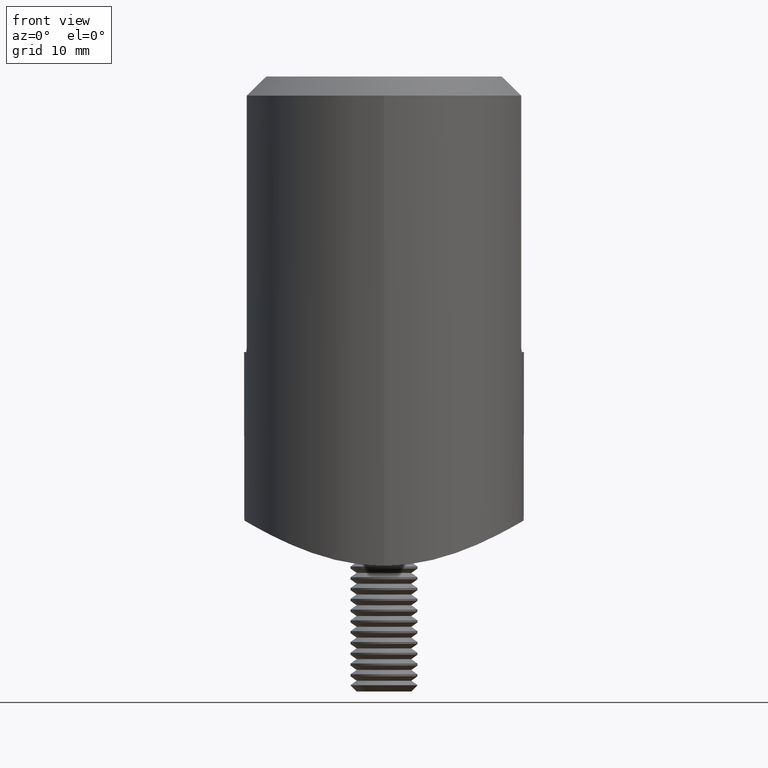
[diagram: clean part render]
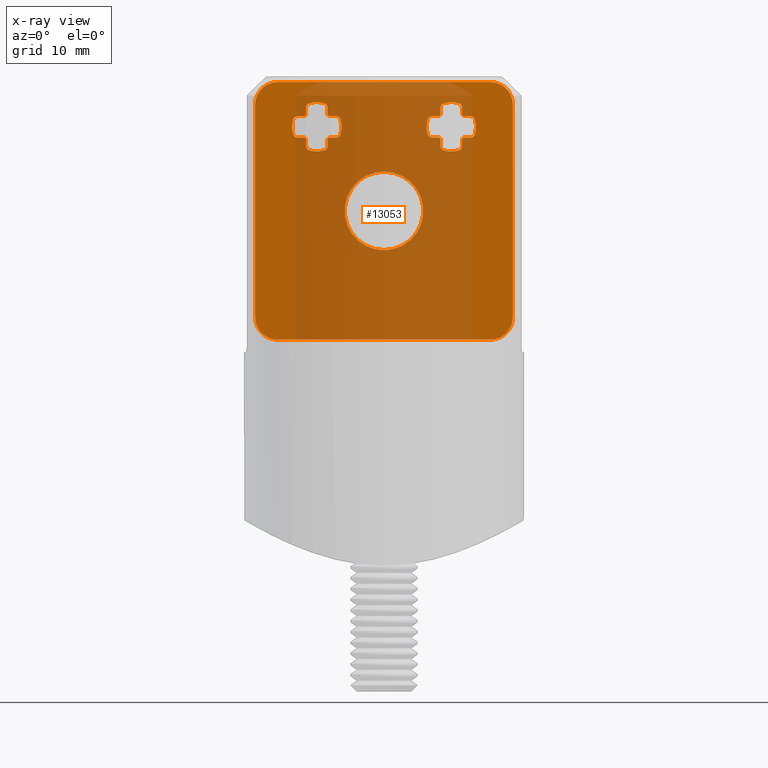
[diagram: x-ray — body ghosted, one internal face saturated and labeled with its STEP entity id]
A machine part, front view, then the same camera in x-ray: the body is ghosted and one INTERNAL B-rep face — a face not visible from any outside direction — is saturated and labeled: STEP entity #13053.
In plain terms, the highlighted planar face has unit normal (0, 1, 0).
Its self-contained STEP definition (entity closure, byte-faithful):
#18 = CARTESIAN_POINT ( 'NONE',  ( 5.050000000000002487, 1.000000000000000000, 9.213913650100257868 ) ) ;
#153 = DIRECTION ( 'NONE',  ( -0.000000000000000000, 1.000000000000000000, 0.000000000000000000 ) ) ;
#178 = VERTEX_POINT ( 'NONE', #21752 ) ;
#295 = CARTESIAN_POINT ( 'NONE',  ( 6.000000000000002665, 1.000000000000000000, 7.499999999999996447 ) ) ;
#430 = CARTESIAN_POINT ( 'NONE',  ( -7.000000000000002665, 1.000000000000000000, 6.549999999999996270 ) ) ;
#473 = EDGE_CURVE ( 'NONE', #21615, #19781, #9952, .T. ) ;
#505 = EDGE_CURVE ( 'NONE', #16956, #4837, #7337, .T. ) ;
#550 = DIRECTION ( 'NONE',  ( 0.000000000000000000, 0.000000000000000000, -1.000000000000000000 ) ) ;
#681 = CARTESIAN_POINT ( 'NONE',  ( 6.000000000000002665, 1.000000000000000000, 7.499999999999996447 ) ) ;
#733 = CARTESIAN_POINT ( 'NONE',  ( -5.327777777777780166, 1.000000000000000000, 9.594783350122540355 ) ) ;
#753 = CIRCLE ( 'NONE', #11497, 0.3999999999999993006 ) ;
#766 = EDGE_CURVE ( 'NONE', #21406, #3413, #15003, .T. ) ;
#813 = VERTEX_POINT ( 'NONE', #13822 ) ;
#901 = DIRECTION ( 'NONE',  ( 0.000000000000000000, 0.000000000000000000, -1.000000000000000000 ) ) ;
#1034 = AXIS2_PLACEMENT_3D ( 'NONE', #14915, #14985, #18159 ) ;
#1074 = VECTOR ( 'NONE', #10625, 1000.000000000000000 ) ;
#1128 = CIRCLE ( 'NONE', #18312, 1.450000000000001732 ) ;
#1146 = DIRECTION ( 'NONE',  ( 0.000000000000000000, 0.000000000000000000, -1.000000000000000000 ) ) ;
#1154 = FACE_BOUND ( 'NONE', #16466, .T. ) ;
#1166 = CARTESIAN_POINT ( 'NONE',  ( -6.672222222222226051, 1.000000000000000000, 9.594783350122536802 ) ) ;
#1229 = CARTESIAN_POINT ( 'NONE',  ( 4.286086349899742132, 1.000000000000000000, 6.549999999999997158 ) ) ;
#1269 = DIRECTION ( 'NONE',  ( 0.000000000000000000, 0.000000000000000000, -1.000000000000000000 ) ) ;
#1325 = CIRCLE ( 'NONE', #12091, 0.3999999999999993006 ) ;
#1358 = DIRECTION ( 'NONE',  ( 0.000000000000000000, 0.000000000000000000, -1.000000000000000000 ) ) ;
#1361 = VECTOR ( 'NONE', #8735, 1000.000000000000000 ) ;
#1372 = EDGE_CURVE ( 'NONE', #4837, #10911, #14984, .T. ) ;
#1527 = VERTEX_POINT ( 'NONE', #15574 ) ;
#1549 = CARTESIAN_POINT ( 'NONE',  ( 5.327777777777780166, 1.000000000000000000, 5.405216649877454316 ) ) ;
#1558 = CARTESIAN_POINT ( 'NONE',  ( -9.500000000000005329, 1.000000000000000000, -11.49999999999999112 ) ) ;
#1596 = EDGE_CURVE ( 'NONE', #5837, #14023, #12094, .T. ) ;
#1623 = EDGE_CURVE ( 'NONE', #178, #14460, #15473, .T. ) ;
#1639 = CARTESIAN_POINT ( 'NONE',  ( -7.713913650100259645, 1.000000000000000000, 8.049999999999997158 ) ) ;
#1746 = EDGE_CURVE ( 'NONE', #9316, #21835, #12612, .T. ) ;
#1779 = AXIS2_PLACEMENT_3D ( 'NONE', #14694, #4614, #19572 ) ;
#1801 = CARTESIAN_POINT ( 'NONE',  ( -6.550000000000002487, 1.000000000000000000, 9.213913650100257868 ) ) ;
#1903 = CARTESIAN_POINT ( 'NONE',  ( 6.550000000000003375, 1.000000000000000000, 5.786086349899735026 ) ) ;
#1948 = DIRECTION ( 'NONE',  ( 0.000000000000000000, 0.000000000000000000, -1.000000000000000000 ) ) ;
#1968 = CARTESIAN_POINT ( 'NONE',  ( -4.286086349899735914, 1.000000000000000000, 8.449999999999997513 ) ) ;
#1977 = VERTEX_POINT ( 'NONE', #3638 ) ;
#1980 = CARTESIAN_POINT ( 'NONE',  ( 4.904554884986475294, 1.000000000000000000, 8.449999999999997513 ) ) ;
#2115 = CARTESIAN_POINT ( 'NONE',  ( 4.286086349899742132, 1.000000000000000000, 6.949999999999995737 ) ) ;
#2189 = DIRECTION ( 'NONE',  ( -0.000000000000000000, 1.000000000000000000, 0.000000000000000000 ) ) ;
#2209 = ORIENTED_EDGE ( 'NONE', *, *, #20922, .T. ) ;
#2254 = VERTEX_POINT ( 'NONE', #1229 ) ;
#2357 = VERTEX_POINT ( 'NONE', #8480 ) ;
#2376 = LINE ( 'NONE', #19827, #5823 ) ;
#2404 = CARTESIAN_POINT ( 'NONE',  ( -7.713913650100257868, 1.000000000000000000, 6.949999999999995737 ) ) ;
#2443 = CARTESIAN_POINT ( 'NONE',  ( -6.950000000000002842, 1.000000000000000000, 8.499999999999994671 ) ) ;
#2479 = DIRECTION ( 'NONE',  ( 0.000000000000000000, 0.000000000000000000, -1.000000000000000000 ) ) ;
#2496 = FACE_BOUND ( 'NONE', #10877, .T. ) ;
#2520 = CIRCLE ( 'NONE', #15241, 1.450000000000001732 ) ;
#2560 = ORIENTED_EDGE ( 'NONE', *, *, #21562, .T. ) ;
#2563 = DIRECTION ( 'NONE',  ( 0.000000000000000000, 0.000000000000000000, -1.000000000000000000 ) ) ;
#2598 = VERTEX_POINT ( 'NONE', #15751 ) ;
#2641 = CARTESIAN_POINT ( 'NONE',  ( -6.949999999998421885, 1.000000000000000000, 8.595445115011701276 ) ) ;
#2722 = EDGE_CURVE ( 'NONE', #2357, #16956, #7816, .T. ) ;
#2727 = AXIS2_PLACEMENT_3D ( 'NONE', #1639, #11938, #5064 ) ;
#2814 = AXIS2_PLACEMENT_3D ( 'NONE', #1801, #20339, #15450 ) ;
#2851 = VECTOR ( 'NONE', #21139, 1000.000000000000000 ) ;
#2942 = DIRECTION ( 'NONE',  ( -0.000000000000000000, 1.000000000000000000, 0.000000000000000000 ) ) ;
#3223 = DIRECTION ( 'NONE',  ( 0.000000000000000000, 0.000000000000000000, -1.000000000000000000 ) ) ;
#3294 = CARTESIAN_POINT ( 'NONE',  ( -6.000000000000002665, 1.000000000000000000, 7.499999999999996447 ) ) ;
#3299 = EDGE_CURVE ( 'NONE', #21615, #1977, #9388, .T. ) ;
#3350 = ORIENTED_EDGE ( 'NONE', *, *, #20993, .T. ) ;
#3369 = DIRECTION ( 'NONE',  ( 0.000000000000000000, -1.000000000000000000, -0.000000000000000000 ) ) ;
#3400 = CARTESIAN_POINT ( 'NONE',  ( -4.102413672324902132E-15, 1.000000000000000000, 6.549999999999991829 ) ) ;
#3413 = VERTEX_POINT ( 'NONE', #8433 ) ;
#3424 = CIRCLE ( 'NONE', #17166, 0.4000000000000001887 ) ;
#3548 = ORIENTED_EDGE ( 'NONE', *, *, #9294, .T. ) ;
#3571 = ORIENTED_EDGE ( 'NONE', *, *, #9721, .T. ) ;
#3596 = EDGE_CURVE ( 'NONE', #3652, #2598, #19637, .T. ) ;
#3603 = CARTESIAN_POINT ( 'NONE',  ( -6.000000000000002665, 1.000000000000000000, 7.499999999999996447 ) ) ;
#3638 = CARTESIAN_POINT ( 'NONE',  ( 3.905216649877461421, 1.000000000000000000, 6.827777777777773061 ) ) ;
#3652 = VERTEX_POINT ( 'NONE', #19237 ) ;
#3763 = CARTESIAN_POINT ( 'NONE',  ( 6.000000000000002665, 1.000000000000000000, 7.499999999999996447 ) ) ;
#3776 = CARTESIAN_POINT ( 'NONE',  ( 6.949999999998421885, 1.000000000000000000, 8.595445115011701276 ) ) ;
#3811 = CARTESIAN_POINT ( 'NONE',  ( -4.904554884988297836, 1.000000000000000000, 8.449999999998414779 ) ) ;
#3909 = LINE ( 'NONE', #15983, #6823 ) ;
#3957 = CARTESIAN_POINT ( 'NONE',  ( -8.094783350122540355, 1.000000000000000000, 8.172222222222217169 ) ) ;
#3976 = EDGE_CURVE ( 'NONE', #14460, #17472, #1128, .T. ) ;
#4013 = VERTEX_POINT ( 'NONE', #13559 ) ;
#4015 = EDGE_CURVE ( 'NONE', #10202, #1527, #14072, .T. ) ;
#4040 = VECTOR ( 'NONE', #11619, 1000.000000000000000 ) ;
#4157 = VECTOR ( 'NONE', #15947, 1000.000000000000000 ) ;
#4223 = VECTOR ( 'NONE', #11378, 1000.000000000000000 ) ;
#4248 = VERTEX_POINT ( 'NONE', #16270 ) ;
#4275 = CIRCLE ( 'NONE', #9375, 0.4000000000000001887 ) ;
#4308 = DIRECTION ( 'NONE',  ( 0.000000000000000000, 0.000000000000000000, 1.000000000000000000 ) ) ;
#4456 = DIRECTION ( 'NONE',  ( -8.673617379884035472E-16, 0.000000000000000000, -1.000000000000000000 ) ) ;
#4614 = DIRECTION ( 'NONE',  ( 0.000000000000000000, -1.000000000000000000, -0.000000000000000000 ) ) ;
#4667 = ORIENTED_EDGE ( 'NONE', *, *, #9860, .T. ) ;
#4780 = DIRECTION ( 'NONE',  ( 0.000000000000000000, 0.000000000000000000, -1.000000000000000000 ) ) ;
#4795 = DIRECTION ( 'NONE',  ( 0.000000000000000000, 0.000000000000000000, -1.000000000000000000 ) ) ;
#4804 = VECTOR ( 'NONE', #13951, 1000.000000000000000 ) ;
#4808 = ORIENTED_EDGE ( 'NONE', *, *, #12523, .T. ) ;
#4837 = VERTEX_POINT ( 'NONE', #6618 ) ;
#4842 = EDGE_CURVE ( 'NONE', #12556, #13252, #6928, .T. ) ;
#4929 = CARTESIAN_POINT ( 'NONE',  ( 6.950000000000008171, 1.000000000000000000, 4.352942751550861476E-15 ) ) ;
#4952 = DIRECTION ( 'NONE',  ( 1.000000000000000000, -0.000000000000000000, 6.263226980648714405E-16 ) ) ;
#4970 = VERTEX_POINT ( 'NONE', #18 ) ;
#5053 = AXIS2_PLACEMENT_3D ( 'NONE', #7452, #14149, #2563 ) ;
#5059 = ORIENTED_EDGE ( 'NONE', *, *, #6430, .T. ) ;
#5064 = DIRECTION ( 'NONE',  ( 0.000000000000000000, 0.000000000000000000, -1.000000000000000000 ) ) ;
#5087 = AXIS2_PLACEMENT_3D ( 'NONE', #3603, #13483, #13551 ) ;
#5118 = CARTESIAN_POINT ( 'NONE',  ( 5.050000000000002487, 1.000000000000000000, 8.499999999999994671 ) ) ;
#5154 = LINE ( 'NONE', #13100, #10443 ) ;
#5179 = DIRECTION ( 'NONE',  ( 0.000000000000000000, 0.000000000000000000, -1.000000000000000000 ) ) ;
#5220 = DIRECTION ( 'NONE',  ( -0.000000000000000000, 1.000000000000000000, 0.000000000000000000 ) ) ;
#5306 = EDGE_CURVE ( 'NONE', #13140, #8265, #8803, .T. ) ;
#5327 = EDGE_CURVE ( 'NONE', #14083, #5406, #14729, .T. ) ;
#5341 = EDGE_LOOP ( 'NONE', ( #18328, #4808, #21906, #15230, #16148, #13798, #17421, #9464, #8846, #7062, #16108, #6307, #20502, #16361, #18207, #9103, #17347, #14204, #10392, #19728, #15300, #8287, #6366, #13904 ) ) ;
#5406 = VERTEX_POINT ( 'NONE', #8155 ) ;
#5443 = AXIS2_PLACEMENT_3D ( 'NONE', #3763, #12053, #5179 ) ;
#5555 = VERTEX_POINT ( 'NONE', #1166 ) ;
#5586 = CIRCLE ( 'NONE', #17206, 2.200000000000000622 ) ;
#5663 = ORIENTED_EDGE ( 'NONE', *, *, #14922, .T. ) ;
#5710 = CARTESIAN_POINT ( 'NONE',  ( 0.000000000000000000, 1.000000000000000000, 8.449999999999997513 ) ) ;
#5737 = CARTESIAN_POINT ( 'NONE',  ( 7.713913650100264086, 1.000000000000000000, 6.949999999999995737 ) ) ;
#5823 = VECTOR ( 'NONE', #21606, 1000.000000000000000 ) ;
#5837 = VERTEX_POINT ( 'NONE', #8647 ) ;
#5857 = ORIENTED_EDGE ( 'NONE', *, *, #13909, .T. ) ;
#6151 = DIRECTION ( 'NONE',  ( 1.000000000000000000, 0.000000000000000000, 7.542275982507857147E-17 ) ) ;
#6161 = DIRECTION ( 'NONE',  ( 0.000000000000000000, 0.000000000000000000, -1.000000000000000000 ) ) ;
#6285 = CARTESIAN_POINT ( 'NONE',  ( -5.050000000000002487, 1.000000000000000000, 6.499999999999998224 ) ) ;
#6307 = ORIENTED_EDGE ( 'NONE', *, *, #19238, .T. ) ;
#6317 = CARTESIAN_POINT ( 'NONE',  ( -7.095445115011707493, 1.000000000000000000, 8.449999999998414779 ) ) ;
#6345 = CIRCLE ( 'NONE', #6485, 0.4000000000000001887 ) ;
#6366 = ORIENTED_EDGE ( 'NONE', *, *, #18689, .F. ) ;
#6406 = VERTEX_POINT ( 'NONE', #9976 ) ;
#6430 = EDGE_CURVE ( 'NONE', #6406, #15793, #9496, .T. ) ;
#6485 = AXIS2_PLACEMENT_3D ( 'NONE', #7006, #9008, #550 ) ;
#6506 = DIRECTION ( 'NONE',  ( -0.000000000000000000, 1.000000000000000000, 0.000000000000000000 ) ) ;
#6540 = DIRECTION ( 'NONE',  ( -1.000000000000000000, 0.000000000000000000, 0.000000000000000000 ) ) ;
#6566 = CIRCLE ( 'NONE', #8895, 3.499999999999999556 ) ;
#6586 = EDGE_CURVE ( 'NONE', #7870, #7870, #6566, .T. ) ;
#6618 = CARTESIAN_POINT ( 'NONE',  ( 11.49999999999999645, 1.000000000000000000, -9.500000000000000000 ) ) ;
#6640 = VERTEX_POINT ( 'NONE', #17867 ) ;
#6723 = VERTEX_POINT ( 'NONE', #19573 ) ;
#6730 = VERTEX_POINT ( 'NONE', #9353 ) ;
#6757 = CARTESIAN_POINT ( 'NONE',  ( 8.094783350122543908, 1.000000000000000000, 6.827777777777773061 ) ) ;
#6823 = VECTOR ( 'NONE', #7584, 1000.000000000000000 ) ;
#6883 = EDGE_CURVE ( 'NONE', #9498, #10570, #753, .T. ) ;
#6928 = LINE ( 'NONE', #4929, #4040 ) ;
#6936 = EDGE_CURVE ( 'NONE', #4970, #19396, #13223, .T. ) ;
#6967 = EDGE_CURVE ( 'NONE', #11672, #4248, #2520, .T. ) ;
#6985 = AXIS2_PLACEMENT_3D ( 'NONE', #295, #16776, #11733 ) ;
#7006 = CARTESIAN_POINT ( 'NONE',  ( -5.450000000000002842, 1.000000000000000000, 5.786086349899735026 ) ) ;
#7062 = ORIENTED_EDGE ( 'NONE', *, *, #10489, .T. ) ;
#7206 = ORIENTED_EDGE ( 'NONE', *, *, #10736, .F. ) ;
#7331 = CARTESIAN_POINT ( 'NONE',  ( -4.286086349899735914, 1.000000000000000000, 8.049999999999997158 ) ) ;
#7337 = LINE ( 'NONE', #21363, #2851 ) ;
#7452 = CARTESIAN_POINT ( 'NONE',  ( 7.713913650100264086, 1.000000000000000000, 8.049999999999997158 ) ) ;
#7488 = VECTOR ( 'NONE', #4952, 1000.000000000000000 ) ;
#7520 = ORIENTED_EDGE ( 'NONE', *, *, #13066, .F. ) ;
#7560 = DIRECTION ( 'NONE',  ( 0.000000000000000000, 0.000000000000000000, 1.000000000000000000 ) ) ;
#7578 = VECTOR ( 'NONE', #4308, 1000.000000000000000 ) ;
#7584 = DIRECTION ( 'NONE',  ( 1.000000000000000000, -0.000000000000000000, -0.000000000000000000 ) ) ;
#7701 = DIRECTION ( 'NONE',  ( -0.000000000000000000, 1.000000000000000000, 0.000000000000000000 ) ) ;
#7723 = VECTOR ( 'NONE', #6540, 1000.000000000000000 ) ;
#7724 = AXIS2_PLACEMENT_3D ( 'NONE', #10280, #18853, #18711 ) ;
#7731 = EDGE_CURVE ( 'NONE', #18892, #8814, #21737, .T. ) ;
#7814 = CARTESIAN_POINT ( 'NONE',  ( 6.000000000000002665, 1.000000000000000000, 7.499999999999996447 ) ) ;
#7816 = CIRCLE ( 'NONE', #16900, 2.000000000000000000 ) ;
#7858 = DIRECTION ( 'NONE',  ( -0.000000000000000000, 1.000000000000000000, 0.000000000000000000 ) ) ;
#7868 = CARTESIAN_POINT ( 'NONE',  ( 4.286086349899742132, 1.000000000000000000, 8.049999999999997158 ) ) ;
#7870 = VERTEX_POINT ( 'NONE', #17552 ) ;
#7904 = EDGE_CURVE ( 'NONE', #2254, #1977, #8282, .T. ) ;
#7982 = CARTESIAN_POINT ( 'NONE',  ( 11.50000000000000000, 1.000000000000000000, 9.499999999999998224 ) ) ;
#7983 = CIRCLE ( 'NONE', #8232, 1.450000000000001732 ) ;
#8022 = CARTESIAN_POINT ( 'NONE',  ( 9.500000000000000000, 1.000000000000000000, 9.499999999999998224 ) ) ;
#8044 = DIRECTION ( 'NONE',  ( 0.000000000000000000, -1.000000000000000000, -0.000000000000000000 ) ) ;
#8131 = AXIS2_PLACEMENT_3D ( 'NONE', #1903, #19018, #12195 ) ;
#8155 = CARTESIAN_POINT ( 'NONE',  ( 5.050000000000003375, 1.000000000000000000, 5.786086349899735026 ) ) ;
#8167 = CIRCLE ( 'NONE', #8131, 0.4000000000000001887 ) ;
#8232 = AXIS2_PLACEMENT_3D ( 'NONE', #681, #12398, #10862 ) ;
#8262 = AXIS2_PLACEMENT_3D ( 'NONE', #7814, #8044, #4795 ) ;
#8265 = VERTEX_POINT ( 'NONE', #20199 ) ;
#8278 = CARTESIAN_POINT ( 'NONE',  ( -7.713913650100257868, 1.000000000000000000, 6.549999999999997158 ) ) ;
#8282 = CIRCLE ( 'NONE', #11732, 0.4000000000000001887 ) ;
#8287 = ORIENTED_EDGE ( 'NONE', *, *, #4842, .T. ) ;
#8433 = CARTESIAN_POINT ( 'NONE',  ( -7.713913650100259645, 1.000000000000000000, 8.449999999999997513 ) ) ;
#8480 = CARTESIAN_POINT ( 'NONE',  ( 9.499999999999998224, 1.000000000000000000, 11.49999999999999822 ) ) ;
#8516 = DIRECTION ( 'NONE',  ( 0.000000000000000000, -1.000000000000000000, -0.000000000000000000 ) ) ;
#8553 = AXIS2_PLACEMENT_3D ( 'NONE', #16550, #19942, #11588 ) ;
#8647 = CARTESIAN_POINT ( 'NONE',  ( 6.950000000000002842, 1.000000000000000000, 5.786086349899735026 ) ) ;
#8652 = DIRECTION ( 'NONE',  ( -0.000000000000000000, 0.000000000000000000, -1.000000000000000000 ) ) ;
#8700 = AXIS2_PLACEMENT_3D ( 'NONE', #12015, #153, #16934 ) ;
#8708 = ORIENTED_EDGE ( 'NONE', *, *, #13373, .T. ) ;
#8720 = LINE ( 'NONE', #18175, #4223 ) ;
#8735 = DIRECTION ( 'NONE',  ( -0.000000000000000000, -0.000000000000000000, -1.000000000000000000 ) ) ;
#8738 = CARTESIAN_POINT ( 'NONE',  ( -8.094783350122538579, 1.000000000000000000, 6.827777777777773061 ) ) ;
#8803 = CIRCLE ( 'NONE', #1779, 2.200000000000000622 ) ;
#8812 = ORIENTED_EDGE ( 'NONE', *, *, #6967, .T. ) ;
#8814 = VERTEX_POINT ( 'NONE', #16891 ) ;
#8846 = ORIENTED_EDGE ( 'NONE', *, *, #4015, .T. ) ;
#8856 = CARTESIAN_POINT ( 'NONE',  ( 6.672222222222226939, 1.000000000000000000, 5.405216649877455204 ) ) ;
#8889 = EDGE_CURVE ( 'NONE', #11029, #16743, #16411, .T. ) ;
#8895 = AXIS2_PLACEMENT_3D ( 'NONE', #9202, #11002, #7560 ) ;
#9008 = DIRECTION ( 'NONE',  ( -0.000000000000000000, 1.000000000000000000, 0.000000000000000000 ) ) ;
#9103 = ORIENTED_EDGE ( 'NONE', *, *, #7731, .T. ) ;
#9108 = ORIENTED_EDGE ( 'NONE', *, *, #9829, .F. ) ;
#9187 = CIRCLE ( 'NONE', #14461, 2.200000000000000622 ) ;
#9198 = DIRECTION ( 'NONE',  ( -2.168404344971007685E-15, 0.000000000000000000, -1.000000000000000000 ) ) ;
#9202 = CARTESIAN_POINT ( 'NONE',  ( 0.000000000000000000, 1.000000000000000000, 0.000000000000000000 ) ) ;
#9247 = VERTEX_POINT ( 'NONE', #6757 ) ;
#9294 = EDGE_CURVE ( 'NONE', #16338, #20476, #11730, .T. ) ;
#9316 = VERTEX_POINT ( 'NONE', #17365 ) ;
#9353 = CARTESIAN_POINT ( 'NONE',  ( -11.50000000000000355, 1.000000000000000000, -9.499999999999987566 ) ) ;
#9375 = AXIS2_PLACEMENT_3D ( 'NONE', #5737, #14131, #19218 ) ;
#9388 = CIRCLE ( 'NONE', #19017, 2.200000000000000622 ) ;
#9401 = DIRECTION ( 'NONE',  ( 6.263226980648709475E-16, -0.000000000000000000, -1.000000000000000000 ) ) ;
#9464 = ORIENTED_EDGE ( 'NONE', *, *, #18687, .T. ) ;
#9496 = CIRCLE ( 'NONE', #5087, 1.450000000000001732 ) ;
#9498 = VERTEX_POINT ( 'NONE', #733 ) ;
#9616 = LINE ( 'NONE', #17178, #12497 ) ;
#9625 = ORIENTED_EDGE ( 'NONE', *, *, #19541, .F. ) ;
#9635 = CIRCLE ( 'NONE', #11787, 2.000000000000000000 ) ;
#9658 = LINE ( 'NONE', #5710, #11526 ) ;
#9659 = ORIENTED_EDGE ( 'NONE', *, *, #2722, .T. ) ;
#9678 = CARTESIAN_POINT ( 'NONE',  ( 6.672222222222225163, 1.000000000000000000, 9.594783350122536802 ) ) ;
#9694 = EDGE_CURVE ( 'NONE', #4248, #4013, #11707, .T. ) ;
#9721 = EDGE_CURVE ( 'NONE', #9498, #5555, #5586, .T. ) ;
#9829 = EDGE_CURVE ( 'NONE', #19913, #6640, #12976, .T. ) ;
#9860 = EDGE_CURVE ( 'NONE', #10911, #19317, #16677, .T. ) ;
#9866 = AXIS2_PLACEMENT_3D ( 'NONE', #7868, #12751, #901 ) ;
#9942 = CARTESIAN_POINT ( 'NONE',  ( -11.50000000000000000, 1.000000000000000000, 11.49999999999999645 ) ) ;
#9952 = CIRCLE ( 'NONE', #9866, 0.4000000000000001887 ) ;
#9976 = CARTESIAN_POINT ( 'NONE',  ( -5.050000000001583444, 1.000000000000000000, 6.404554884988290731 ) ) ;
#10040 = CIRCLE ( 'NONE', #8553, 1.450000000000001732 ) ;
#10106 = CARTESIAN_POINT ( 'NONE',  ( 4.904554884988296060, 1.000000000000000000, 6.550000000001578115 ) ) ;
#10200 = FACE_OUTER_BOUND ( 'NONE', #17866, .T. ) ;
#10202 = VERTEX_POINT ( 'NONE', #10106 ) ;
#10274 = CARTESIAN_POINT ( 'NONE',  ( -6.672222222222226939, 1.000000000000000000, 5.405216649877457868 ) ) ;
#10280 = CARTESIAN_POINT ( 'NONE',  ( 6.000000000000002665, 1.000000000000000000, 7.499999999999996447 ) ) ;
#10392 = ORIENTED_EDGE ( 'NONE', *, *, #3596, .F. ) ;
#10443 = VECTOR ( 'NONE', #6151, 1000.000000000000000 ) ;
#10489 = EDGE_CURVE ( 'NONE', #1527, #5406, #18217, .T. ) ;
#10541 = CIRCLE ( 'NONE', #12244, 2.200000000000000622 ) ;
#10570 = VERTEX_POINT ( 'NONE', #16368 ) ;
#10625 = DIRECTION ( 'NONE',  ( -1.000000000000000000, -0.000000000000000000, 5.279593187755499510E-16 ) ) ;
#10736 = EDGE_CURVE ( 'NONE', #15553, #8265, #6345, .T. ) ;
#10829 = CARTESIAN_POINT ( 'NONE',  ( 6.950000000000002842, 1.000000000000000000, 6.499999999999997335 ) ) ;
#10849 = ORIENTED_EDGE ( 'NONE', *, *, #6883, .F. ) ;
#10862 = DIRECTION ( 'NONE',  ( 0.000000000000000000, 0.000000000000000000, -1.000000000000000000 ) ) ;
#10867 = DIRECTION ( 'NONE',  ( -0.000000000000000000, 1.000000000000000000, 0.000000000000000000 ) ) ;
#10877 = EDGE_LOOP ( 'NONE', ( #21435 ) ) ;
#10911 = VERTEX_POINT ( 'NONE', #14214 ) ;
#11002 = DIRECTION ( 'NONE',  ( 0.000000000000000000, 1.000000000000000000, 0.000000000000000000 ) ) ;
#11029 = VERTEX_POINT ( 'NONE', #8278 ) ;
#11075 = DIRECTION ( 'NONE',  ( 0.000000000000000000, -1.000000000000000000, -0.000000000000000000 ) ) ;
#11127 = CIRCLE ( 'NONE', #6985, 2.200000000000000622 ) ;
#11273 = FACE_BOUND ( 'NONE', #5341, .T. ) ;
#11378 = DIRECTION ( 'NONE',  ( -1.000000000000000000, 0.000000000000000000, 0.000000000000000000 ) ) ;
#11394 = DIRECTION ( 'NONE',  ( -0.000000000000000000, 1.000000000000000000, 0.000000000000000000 ) ) ;
#11449 = CARTESIAN_POINT ( 'NONE',  ( 5.450000000000002842, 1.000000000000000000, 5.786086349899735026 ) ) ;
#11497 = AXIS2_PLACEMENT_3D ( 'NONE', #21524, #11394, #4780 ) ;
#11526 = VECTOR ( 'NONE', #19188, 1000.000000000000000 ) ;
#11546 = DIRECTION ( 'NONE',  ( -0.000000000000000000, -0.000000000000000000, 1.000000000000000000 ) ) ;
#11588 = DIRECTION ( 'NONE',  ( 0.000000000000000000, 0.000000000000000000, -1.000000000000000000 ) ) ;
#11619 = DIRECTION ( 'NONE',  ( -6.263226980648714405E-16, -0.000000000000000000, 1.000000000000000000 ) ) ;
#11655 = DIRECTION ( 'NONE',  ( 0.000000000000000000, -1.000000000000000000, -0.000000000000000000 ) ) ;
#11672 = VERTEX_POINT ( 'NONE', #15239 ) ;
#11707 = LINE ( 'NONE', #18600, #1361 ) ;
#11730 = CIRCLE ( 'NONE', #14633, 2.000000000000000000 ) ;
#11732 = AXIS2_PLACEMENT_3D ( 'NONE', #2115, #2189, #14137 ) ;
#11733 = DIRECTION ( 'NONE',  ( 0.000000000000000000, 0.000000000000000000, -1.000000000000000000 ) ) ;
#11787 = AXIS2_PLACEMENT_3D ( 'NONE', #17932, #7701, #4456 ) ;
#11815 = DIRECTION ( 'NONE',  ( 0.000000000000000000, 0.000000000000000000, -1.000000000000000000 ) ) ;
#11895 = LINE ( 'NONE', #6285, #21366 ) ;
#11938 = DIRECTION ( 'NONE',  ( -0.000000000000000000, 1.000000000000000000, 0.000000000000000000 ) ) ;
#11951 = DIRECTION ( 'NONE',  ( -0.000000000000000000, 1.000000000000000000, 0.000000000000000000 ) ) ;
#11990 = CARTESIAN_POINT ( 'NONE',  ( 4.286086349899742132, 1.000000000000000000, 8.449999999999997513 ) ) ;
#12015 = CARTESIAN_POINT ( 'NONE',  ( 9.499999999999996447, 1.000000000000000000, -9.500000000000000000 ) ) ;
#12053 = DIRECTION ( 'NONE',  ( 0.000000000000000000, -1.000000000000000000, -0.000000000000000000 ) ) ;
#12091 = AXIS2_PLACEMENT_3D ( 'NONE', #17898, #2942, #1146 ) ;
#12094 = LINE ( 'NONE', #10829, #7578 ) ;
#12129 = ORIENTED_EDGE ( 'NONE', *, *, #1372, .T. ) ;
#12195 = DIRECTION ( 'NONE',  ( 2.168404344971007685E-15, 0.000000000000000000, -1.000000000000000000 ) ) ;
#12201 = ORIENTED_EDGE ( 'NONE', *, *, #20169, .T. ) ;
#12244 = AXIS2_PLACEMENT_3D ( 'NONE', #17796, #11075, #6161 ) ;
#12291 = EDGE_CURVE ( 'NONE', #6730, #16338, #14643, .T. ) ;
#12388 = ORIENTED_EDGE ( 'NONE', *, *, #8889, .F. ) ;
#12398 = DIRECTION ( 'NONE',  ( 0.000000000000000000, -1.000000000000000000, -0.000000000000000000 ) ) ;
#12411 = AXIS2_PLACEMENT_3D ( 'NONE', #7331, #19269, #9198 ) ;
#12484 = ORIENTED_EDGE ( 'NONE', *, *, #18119, .T. ) ;
#12497 = VECTOR ( 'NONE', #18863, 1000.000000000000000 ) ;
#12505 = CARTESIAN_POINT ( 'NONE',  ( 5.327777777777778390, 1.000000000000000000, 9.594783350122536802 ) ) ;
#12523 = EDGE_CURVE ( 'NONE', #4970, #9316, #18084, .T. ) ;
#12556 = VERTEX_POINT ( 'NONE', #3776 ) ;
#12612 = CIRCLE ( 'NONE', #1034, 1.450000000000001732 ) ;
#12751 = DIRECTION ( 'NONE',  ( -0.000000000000000000, 1.000000000000000000, 0.000000000000000000 ) ) ;
#12753 = LINE ( 'NONE', #21808, #21176 ) ;
#12910 = CARTESIAN_POINT ( 'NONE',  ( 5.050000000000006928, 1.000000000000000000, 3.162929625227602515E-15 ) ) ;
#12976 = CIRCLE ( 'NONE', #12411, 0.4000000000000001887 ) ;
#12978 = VERTEX_POINT ( 'NONE', #17025 ) ;
#13016 = CARTESIAN_POINT ( 'NONE',  ( 3.905216649877460977, 1.000000000000000000, 8.172222222222217169 ) ) ;
#13053 = ADVANCED_FACE ( 'NONE', ( #11273, #10200, #2496, #1154 ), #18847, .F. ) ;
#13066 = EDGE_CURVE ( 'NONE', #178, #5555, #16506, .T. ) ;
#13082 = VECTOR ( 'NONE', #8652, 1000.000000000000000 ) ;
#13100 = CARTESIAN_POINT ( 'NONE',  ( -11.50000000000000000, 1.000000000000000000, 11.49999999999999645 ) ) ;
#13140 = VERTEX_POINT ( 'NONE', #10274 ) ;
#13223 = CIRCLE ( 'NONE', #14822, 0.3999999999999993006 ) ;
#13252 = VERTEX_POINT ( 'NONE', #19656 ) ;
#13373 = EDGE_CURVE ( 'NONE', #20476, #2357, #5154, .T. ) ;
#13483 = DIRECTION ( 'NONE',  ( 0.000000000000000000, -1.000000000000000000, -0.000000000000000000 ) ) ;
#13545 = CARTESIAN_POINT ( 'NONE',  ( 5.450000000000001954, 1.000000000000000000, 9.213913650100257868 ) ) ;
#13551 = DIRECTION ( 'NONE',  ( 0.000000000000000000, 0.000000000000000000, -1.000000000000000000 ) ) ;
#13559 = CARTESIAN_POINT ( 'NONE',  ( -6.950000000000002842, 1.000000000000000000, 5.786086349899738579 ) ) ;
#13757 = EDGE_CURVE ( 'NONE', #17472, #3413, #9658, .T. ) ;
#13798 = ORIENTED_EDGE ( 'NONE', *, *, #3299, .T. ) ;
#13822 = CARTESIAN_POINT ( 'NONE',  ( 7.095445115013530923, 1.000000000000000000, 8.449999999999997513 ) ) ;
#13904 = ORIENTED_EDGE ( 'NONE', *, *, #18657, .T. ) ;
#13909 = EDGE_CURVE ( 'NONE', #19317, #6730, #9635, .T. ) ;
#13943 = AXIS2_PLACEMENT_3D ( 'NONE', #11449, #7858, #1269 ) ;
#13951 = DIRECTION ( 'NONE',  ( 1.000000000000000000, 0.000000000000000000, -6.263226980648714405E-16 ) ) ;
#13987 = CARTESIAN_POINT ( 'NONE',  ( -4.904554884986473517, 1.000000000000000000, 6.549999999999997158 ) ) ;
#14023 = VERTEX_POINT ( 'NONE', #15202 ) ;
#14072 = CIRCLE ( 'NONE', #7724, 1.450000000000001732 ) ;
#14083 = VERTEX_POINT ( 'NONE', #1549 ) ;
#14131 = DIRECTION ( 'NONE',  ( -0.000000000000000000, 1.000000000000000000, 0.000000000000000000 ) ) ;
#14137 = DIRECTION ( 'NONE',  ( 0.000000000000000000, 0.000000000000000000, -1.000000000000000000 ) ) ;
#14149 = DIRECTION ( 'NONE',  ( -0.000000000000000000, 1.000000000000000000, 0.000000000000000000 ) ) ;
#14204 = ORIENTED_EDGE ( 'NONE', *, *, #20577, .T. ) ;
#14214 = CARTESIAN_POINT ( 'NONE',  ( 9.499999999999994671, 1.000000000000000000, -11.50000000000000000 ) ) ;
#14460 = VERTEX_POINT ( 'NONE', #2641 ) ;
#14461 = AXIS2_PLACEMENT_3D ( 'NONE', #17962, #16273, #19370 ) ;
#14633 = AXIS2_PLACEMENT_3D ( 'NONE', #20187, #11951, #11815 ) ;
#14643 = LINE ( 'NONE', #9942, #21503 ) ;
#14662 = EDGE_CURVE ( 'NONE', #21835, #19781, #9616, .T. ) ;
#14694 = CARTESIAN_POINT ( 'NONE',  ( -5.999999999999997335, 1.000000000000000000, 7.499999999999998224 ) ) ;
#14729 = CIRCLE ( 'NONE', #13943, 0.4000000000000001887 ) ;
#14781 = EDGE_CURVE ( 'NONE', #15205, #12978, #16173, .T. ) ;
#14816 = CIRCLE ( 'NONE', #15561, 1.450000000000001732 ) ;
#14822 = AXIS2_PLACEMENT_3D ( 'NONE', #13545, #5220, #3223 ) ;
#14836 = CARTESIAN_POINT ( 'NONE',  ( -6.550000000000003375, 1.000000000000000000, 5.786086349899738579 ) ) ;
#14876 = ORIENTED_EDGE ( 'NONE', *, *, #12291, .T. ) ;
#14915 = CARTESIAN_POINT ( 'NONE',  ( 6.000000000000002665, 1.000000000000000000, 7.499999999999996447 ) ) ;
#14922 = EDGE_CURVE ( 'NONE', #6723, #10570, #12753, .T. ) ;
#14981 = EDGE_CURVE ( 'NONE', #3652, #813, #15107, .T. ) ;
#14984 = CIRCLE ( 'NONE', #8700, 2.000000000000000000 ) ;
#14985 = DIRECTION ( 'NONE',  ( 0.000000000000000000, -1.000000000000000000, -0.000000000000000000 ) ) ;
#15003 = CIRCLE ( 'NONE', #2727, 0.4000000000000001887 ) ;
#15039 = ORIENTED_EDGE ( 'NONE', *, *, #766, .F. ) ;
#15060 = DIRECTION ( 'NONE',  ( 0.000000000000000000, 0.000000000000000000, -1.000000000000000000 ) ) ;
#15107 = LINE ( 'NONE', #19969, #7723 ) ;
#15202 = CARTESIAN_POINT ( 'NONE',  ( 6.949999999998421885, 1.000000000000000000, 6.404554884988290731 ) ) ;
#15205 = VERTEX_POINT ( 'NONE', #19870 ) ;
#15230 = ORIENTED_EDGE ( 'NONE', *, *, #14662, .T. ) ;
#15239 = CARTESIAN_POINT ( 'NONE',  ( -7.095445115013531812, 1.000000000000000000, 6.549999999999996270 ) ) ;
#15241 = AXIS2_PLACEMENT_3D ( 'NONE', #3294, #3369, #18405 ) ;
#15300 = ORIENTED_EDGE ( 'NONE', *, *, #15456, .T. ) ;
#15311 = DIRECTION ( 'NONE',  ( 0.000000000000000000, -1.000000000000000000, 0.000000000000000000 ) ) ;
#15317 = CIRCLE ( 'NONE', #8262, 2.200000000000000622 ) ;
#15450 = DIRECTION ( 'NONE',  ( 0.000000000000000000, 0.000000000000000000, -1.000000000000000000 ) ) ;
#15456 = EDGE_CURVE ( 'NONE', #813, #12556, #7983, .T. ) ;
#15473 = LINE ( 'NONE', #2443, #4157 ) ;
#15500 = CIRCLE ( 'NONE', #5443, 2.200000000000000622 ) ;
#15514 = EDGE_CURVE ( 'NONE', #9247, #8814, #4275, .T. ) ;
#15524 = ORIENTED_EDGE ( 'NONE', *, *, #9694, .T. ) ;
#15553 = VERTEX_POINT ( 'NONE', #20059 ) ;
#15561 = AXIS2_PLACEMENT_3D ( 'NONE', #21619, #21478, #21692 ) ;
#15574 = CARTESIAN_POINT ( 'NONE',  ( 5.050000000000002487, 1.000000000000000000, 6.404554884986466412 ) ) ;
#15751 = CARTESIAN_POINT ( 'NONE',  ( 8.094783350122545684, 1.000000000000000000, 8.172222222222217169 ) ) ;
#15793 = VERTEX_POINT ( 'NONE', #13987 ) ;
#15812 = CARTESIAN_POINT ( 'NONE',  ( -11.50000000000000355, 1.000000000000000000, -11.49999999999998934 ) ) ;
#15839 = VECTOR ( 'NONE', #9401, 1000.000000000000000 ) ;
#15947 = DIRECTION ( 'NONE',  ( -6.263226980648714405E-16, 0.000000000000000000, -1.000000000000000000 ) ) ;
#15983 = CARTESIAN_POINT ( 'NONE',  ( 0.000000000000000000, 1.000000000000000000, 6.549999999999997158 ) ) ;
#16108 = ORIENTED_EDGE ( 'NONE', *, *, #5327, .F. ) ;
#16148 = ORIENTED_EDGE ( 'NONE', *, *, #473, .F. ) ;
#16173 = CIRCLE ( 'NONE', #21209, 0.4000000000000001887 ) ;
#16245 = ORIENTED_EDGE ( 'NONE', *, *, #3976, .T. ) ;
#16270 = CARTESIAN_POINT ( 'NONE',  ( -6.949999999998421885, 1.000000000000000000, 6.404554884988290731 ) ) ;
#16273 = DIRECTION ( 'NONE',  ( 0.000000000000000000, -1.000000000000000000, -0.000000000000000000 ) ) ;
#16338 = VERTEX_POINT ( 'NONE', #19185 ) ;
#16361 = ORIENTED_EDGE ( 'NONE', *, *, #1596, .T. ) ;
#16368 = CARTESIAN_POINT ( 'NONE',  ( -5.050000000000002487, 1.000000000000000000, 9.213913650100261421 ) ) ;
#16387 = AXIS2_PLACEMENT_3D ( 'NONE', #18778, #15311, #1948 ) ;
#16411 = CIRCLE ( 'NONE', #19159, 0.4000000000000001887 ) ;
#16460 = DIRECTION ( 'NONE',  ( 0.000000000000000000, 0.000000000000000000, -1.000000000000000000 ) ) ;
#16466 = EDGE_LOOP ( 'NONE', ( #9625, #17583, #7206, #20329, #5059, #3350, #17105, #2209, #9108, #16999, #12201, #5663, #10849, #3571, #7520, #19528, #16245, #18105, #15039, #2560, #12388, #12484, #8812, #15524 ) ) ;
#16506 = CIRCLE ( 'NONE', #2814, 0.3999999999999993006 ) ;
#16550 = CARTESIAN_POINT ( 'NONE',  ( -6.000000000000002665, 1.000000000000000000, 7.499999999999996447 ) ) ;
#16677 = LINE ( 'NONE', #15812, #1074 ) ;
#16694 = CARTESIAN_POINT ( 'NONE',  ( 6.000000000000002665, 1.000000000000000000, 7.499999999999996447 ) ) ;
#16743 = VERTEX_POINT ( 'NONE', #8738 ) ;
#16748 = CARTESIAN_POINT ( 'NONE',  ( -9.500000000000000000, 1.000000000000000000, 11.49999999999999645 ) ) ;
#16776 = DIRECTION ( 'NONE',  ( 0.000000000000000000, -1.000000000000000000, -0.000000000000000000 ) ) ;
#16891 = CARTESIAN_POINT ( 'NONE',  ( 7.713913650100264086, 1.000000000000000000, 6.549999999999997158 ) ) ;
#16900 = AXIS2_PLACEMENT_3D ( 'NONE', #8022, #19807, #1358 ) ;
#16914 = CARTESIAN_POINT ( 'NONE',  ( -5.999999999999997335, 1.000000000000000000, 7.499999999999998224 ) ) ;
#16934 = DIRECTION ( 'NONE',  ( 2.602085213965210642E-15, 0.000000000000000000, -1.000000000000000000 ) ) ;
#16956 = VERTEX_POINT ( 'NONE', #7982 ) ;
#16999 = ORIENTED_EDGE ( 'NONE', *, *, #19110, .T. ) ;
#17025 = CARTESIAN_POINT ( 'NONE',  ( -4.286086349899737691, 1.000000000000000000, 6.549999999999997158 ) ) ;
#17030 = DIRECTION ( 'NONE',  ( 0.000000000000000000, 0.000000000000000000, -1.000000000000000000 ) ) ;
#17057 = EDGE_CURVE ( 'NONE', #14023, #18892, #14816, .T. ) ;
#17105 = ORIENTED_EDGE ( 'NONE', *, *, #14781, .F. ) ;
#17166 = AXIS2_PLACEMENT_3D ( 'NONE', #14836, #6506, #16460 ) ;
#17178 = CARTESIAN_POINT ( 'NONE',  ( 0.000000000000000000, 1.000000000000000000, 8.449999999999997513 ) ) ;
#17192 = LINE ( 'NONE', #430, #4804 ) ;
#17206 = AXIS2_PLACEMENT_3D ( 'NONE', #16914, #8516, #20300 ) ;
#17229 = VERTEX_POINT ( 'NONE', #8856 ) ;
#17347 = ORIENTED_EDGE ( 'NONE', *, *, #15514, .F. ) ;
#17365 = CARTESIAN_POINT ( 'NONE',  ( 5.050000000001583444, 1.000000000000000000, 8.595445115011701276 ) ) ;
#17421 = ORIENTED_EDGE ( 'NONE', *, *, #7904, .F. ) ;
#17472 = VERTEX_POINT ( 'NONE', #6317 ) ;
#17552 = CARTESIAN_POINT ( 'NONE',  ( 0.000000000000000000, 1.000000000000000000, 3.499999999999999556 ) ) ;
#17583 = ORIENTED_EDGE ( 'NONE', *, *, #5306, .T. ) ;
#17662 = ORIENTED_EDGE ( 'NONE', *, *, #505, .T. ) ;
#17796 = CARTESIAN_POINT ( 'NONE',  ( -5.999999999999997335, 1.000000000000000000, 7.499999999999998224 ) ) ;
#17866 = EDGE_LOOP ( 'NONE', ( #4667, #5857, #14876, #3548, #8708, #9659, #17662, #12129 ) ) ;
#17867 = CARTESIAN_POINT ( 'NONE',  ( -3.905216649877455204, 1.000000000000000000, 8.172222222222217169 ) ) ;
#17898 = CARTESIAN_POINT ( 'NONE',  ( 6.550000000000002487, 1.000000000000000000, 9.213913650100257868 ) ) ;
#17932 = CARTESIAN_POINT ( 'NONE',  ( -9.500000000000003553, 1.000000000000000000, -9.499999999999987566 ) ) ;
#17962 = CARTESIAN_POINT ( 'NONE',  ( -5.999999999999997335, 1.000000000000000000, 7.499999999999998224 ) ) ;
#18084 = LINE ( 'NONE', #5118, #13082 ) ;
#18105 = ORIENTED_EDGE ( 'NONE', *, *, #13757, .T. ) ;
#18119 = EDGE_CURVE ( 'NONE', #11029, #11672, #17192, .T. ) ;
#18159 = DIRECTION ( 'NONE',  ( 0.000000000000000000, 0.000000000000000000, -1.000000000000000000 ) ) ;
#18175 = CARTESIAN_POINT ( 'NONE',  ( -5.000000000000003553, 1.000000000000000000, 8.449999999999997513 ) ) ;
#18207 = ORIENTED_EDGE ( 'NONE', *, *, #17057, .T. ) ;
#18217 = LINE ( 'NONE', #12910, #15839 ) ;
#18312 = AXIS2_PLACEMENT_3D ( 'NONE', #18784, #20342, #17030 ) ;
#18328 = ORIENTED_EDGE ( 'NONE', *, *, #6936, .F. ) ;
#18405 = DIRECTION ( 'NONE',  ( 0.000000000000000000, 0.000000000000000000, -1.000000000000000000 ) ) ;
#18600 = CARTESIAN_POINT ( 'NONE',  ( -6.950000000000002842, 1.000000000000000000, 0.000000000000000000 ) ) ;
#18657 = EDGE_CURVE ( 'NONE', #21104, #19396, #15317, .T. ) ;
#18687 = EDGE_CURVE ( 'NONE', #2254, #10202, #2376, .T. ) ;
#18689 = EDGE_CURVE ( 'NONE', #21104, #13252, #1325, .T. ) ;
#18711 = DIRECTION ( 'NONE',  ( 0.000000000000000000, 0.000000000000000000, -1.000000000000000000 ) ) ;
#18778 = CARTESIAN_POINT ( 'NONE',  ( 0.000000000000000000, 1.000000000000000000, 0.000000000000000000 ) ) ;
#18784 = CARTESIAN_POINT ( 'NONE',  ( -6.000000000000002665, 1.000000000000000000, 7.499999999999996447 ) ) ;
#18847 = PLANE ( 'NONE',  #16387 ) ;
#18853 = DIRECTION ( 'NONE',  ( 0.000000000000000000, -1.000000000000000000, -0.000000000000000000 ) ) ;
#18863 = DIRECTION ( 'NONE',  ( -1.000000000000000000, -0.000000000000000000, -0.000000000000000000 ) ) ;
#18892 = VERTEX_POINT ( 'NONE', #20538 ) ;
#19017 = AXIS2_PLACEMENT_3D ( 'NONE', #16694, #11655, #15060 ) ;
#19018 = DIRECTION ( 'NONE',  ( -0.000000000000000000, 1.000000000000000000, 0.000000000000000000 ) ) ;
#19110 = EDGE_CURVE ( 'NONE', #19913, #21395, #8720, .T. ) ;
#19159 = AXIS2_PLACEMENT_3D ( 'NONE', #2404, #10867, #2479 ) ;
#19185 = CARTESIAN_POINT ( 'NONE',  ( -11.50000000000000000, 1.000000000000000000, 9.499999999999996447 ) ) ;
#19188 = DIRECTION ( 'NONE',  ( -1.000000000000000000, -0.000000000000000000, -0.000000000000000000 ) ) ;
#19218 = DIRECTION ( 'NONE',  ( 0.000000000000000000, 0.000000000000000000, -1.000000000000000000 ) ) ;
#19237 = CARTESIAN_POINT ( 'NONE',  ( 7.713913650100264086, 1.000000000000000000, 8.449999999999997513 ) ) ;
#19238 = EDGE_CURVE ( 'NONE', #14083, #17229, #11127, .T. ) ;
#19269 = DIRECTION ( 'NONE',  ( -0.000000000000000000, 1.000000000000000000, 0.000000000000000000 ) ) ;
#19317 = VERTEX_POINT ( 'NONE', #1558 ) ;
#19370 = DIRECTION ( 'NONE',  ( 0.000000000000000000, 0.000000000000000000, -1.000000000000000000 ) ) ;
#19396 = VERTEX_POINT ( 'NONE', #12505 ) ;
#19528 = ORIENTED_EDGE ( 'NONE', *, *, #1623, .T. ) ;
#19541 = EDGE_CURVE ( 'NONE', #13140, #4013, #3424, .T. ) ;
#19572 = DIRECTION ( 'NONE',  ( 0.000000000000000000, 0.000000000000000000, -1.000000000000000000 ) ) ;
#19573 = CARTESIAN_POINT ( 'NONE',  ( -5.050000000000002487, 1.000000000000000000, 8.595445115013525594 ) ) ;
#19612 = EDGE_CURVE ( 'NONE', #15553, #6406, #11895, .T. ) ;
#19637 = CIRCLE ( 'NONE', #5053, 0.4000000000000001887 ) ;
#19656 = CARTESIAN_POINT ( 'NONE',  ( 6.950000000000001954, 1.000000000000000000, 9.213913650100257868 ) ) ;
#19667 = DIRECTION ( 'NONE',  ( -0.000000000000000000, 1.000000000000000000, 0.000000000000000000 ) ) ;
#19728 = ORIENTED_EDGE ( 'NONE', *, *, #14981, .T. ) ;
#19742 = CARTESIAN_POINT ( 'NONE',  ( -4.286086349899737691, 1.000000000000000000, 6.949999999999995737 ) ) ;
#19781 = VERTEX_POINT ( 'NONE', #11990 ) ;
#19807 = DIRECTION ( 'NONE',  ( -0.000000000000000000, 1.000000000000000000, 0.000000000000000000 ) ) ;
#19827 = CARTESIAN_POINT ( 'NONE',  ( 5.000000000000003553, 1.000000000000000000, 6.549999999999997158 ) ) ;
#19836 = EDGE_CURVE ( 'NONE', #5837, #17229, #8167, .T. ) ;
#19870 = CARTESIAN_POINT ( 'NONE',  ( -3.905216649877456536, 1.000000000000000000, 6.827777777777773061 ) ) ;
#19913 = VERTEX_POINT ( 'NONE', #1968 ) ;
#19934 = DIRECTION ( 'NONE',  ( 6.263226980648709475E-16, 0.000000000000000000, 1.000000000000000000 ) ) ;
#19942 = DIRECTION ( 'NONE',  ( 0.000000000000000000, -1.000000000000000000, -0.000000000000000000 ) ) ;
#19969 = CARTESIAN_POINT ( 'NONE',  ( 7.000000000000002665, 1.000000000000000000, 8.449999999999997513 ) ) ;
#20059 = CARTESIAN_POINT ( 'NONE',  ( -5.050000000000003375, 1.000000000000000000, 5.786086349899735026 ) ) ;
#20169 = EDGE_CURVE ( 'NONE', #21395, #6723, #10040, .T. ) ;
#20187 = CARTESIAN_POINT ( 'NONE',  ( -9.500000000000000000, 1.000000000000000000, 9.499999999999996447 ) ) ;
#20199 = CARTESIAN_POINT ( 'NONE',  ( -5.327777777777781054, 1.000000000000000000, 5.405216649877454316 ) ) ;
#20300 = DIRECTION ( 'NONE',  ( 0.000000000000000000, 0.000000000000000000, -1.000000000000000000 ) ) ;
#20329 = ORIENTED_EDGE ( 'NONE', *, *, #19612, .T. ) ;
#20339 = DIRECTION ( 'NONE',  ( -0.000000000000000000, 1.000000000000000000, 0.000000000000000000 ) ) ;
#20342 = DIRECTION ( 'NONE',  ( 0.000000000000000000, -1.000000000000000000, -0.000000000000000000 ) ) ;
#20476 = VERTEX_POINT ( 'NONE', #16748 ) ;
#20502 = ORIENTED_EDGE ( 'NONE', *, *, #19836, .F. ) ;
#20538 = CARTESIAN_POINT ( 'NONE',  ( 7.095445115011708381, 1.000000000000000000, 6.550000000001578115 ) ) ;
#20577 = EDGE_CURVE ( 'NONE', #9247, #2598, #15500, .T. ) ;
#20922 = EDGE_CURVE ( 'NONE', #15205, #6640, #9187, .T. ) ;
#20993 = EDGE_CURVE ( 'NONE', #15793, #12978, #3909, .T. ) ;
#21104 = VERTEX_POINT ( 'NONE', #9678 ) ;
#21139 = DIRECTION ( 'NONE',  ( -1.508455196501571429E-16, 0.000000000000000000, -1.000000000000000000 ) ) ;
#21176 = VECTOR ( 'NONE', #11546, 1000.000000000000000 ) ;
#21209 = AXIS2_PLACEMENT_3D ( 'NONE', #19742, #19667, #21528 ) ;
#21363 = CARTESIAN_POINT ( 'NONE',  ( 11.50000000000000000, 1.000000000000000000, 11.49999999999999822 ) ) ;
#21366 = VECTOR ( 'NONE', #19934, 1000.000000000000000 ) ;
#21395 = VERTEX_POINT ( 'NONE', #3811 ) ;
#21406 = VERTEX_POINT ( 'NONE', #3957 ) ;
#21435 = ORIENTED_EDGE ( 'NONE', *, *, #6586, .F. ) ;
#21478 = DIRECTION ( 'NONE',  ( 0.000000000000000000, -1.000000000000000000, -0.000000000000000000 ) ) ;
#21503 = VECTOR ( 'NONE', #21780, 1000.000000000000000 ) ;
#21524 = CARTESIAN_POINT ( 'NONE',  ( -5.450000000000001954, 1.000000000000000000, 9.213913650100261421 ) ) ;
#21528 = DIRECTION ( 'NONE',  ( 4.336808689942015369E-15, 0.000000000000000000, -1.000000000000000000 ) ) ;
#21562 = EDGE_CURVE ( 'NONE', #21406, #16743, #10541, .T. ) ;
#21606 = DIRECTION ( 'NONE',  ( 1.000000000000000000, 0.000000000000000000, 0.000000000000000000 ) ) ;
#21615 = VERTEX_POINT ( 'NONE', #13016 ) ;
#21619 = CARTESIAN_POINT ( 'NONE',  ( 6.000000000000002665, 1.000000000000000000, 7.499999999999996447 ) ) ;
#21692 = DIRECTION ( 'NONE',  ( 0.000000000000000000, 0.000000000000000000, -1.000000000000000000 ) ) ;
#21737 = LINE ( 'NONE', #3400, #7488 ) ;
#21752 = CARTESIAN_POINT ( 'NONE',  ( -6.950000000000001954, 1.000000000000000000, 9.213913650100257868 ) ) ;
#21780 = DIRECTION ( 'NONE',  ( 1.508455196501572415E-16, -0.000000000000000000, 1.000000000000000000 ) ) ;
#21808 = CARTESIAN_POINT ( 'NONE',  ( -5.050000000000002487, 1.000000000000000000, 0.000000000000000000 ) ) ;
#21835 = VERTEX_POINT ( 'NONE', #1980 ) ;
#21906 = ORIENTED_EDGE ( 'NONE', *, *, #1746, .T. ) ;